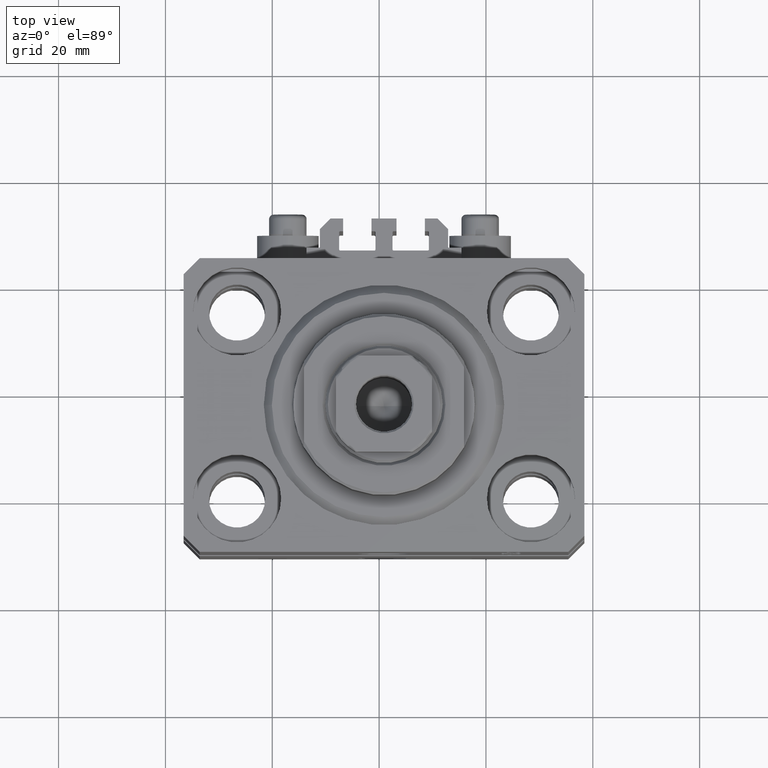
[diagram: clean part render]
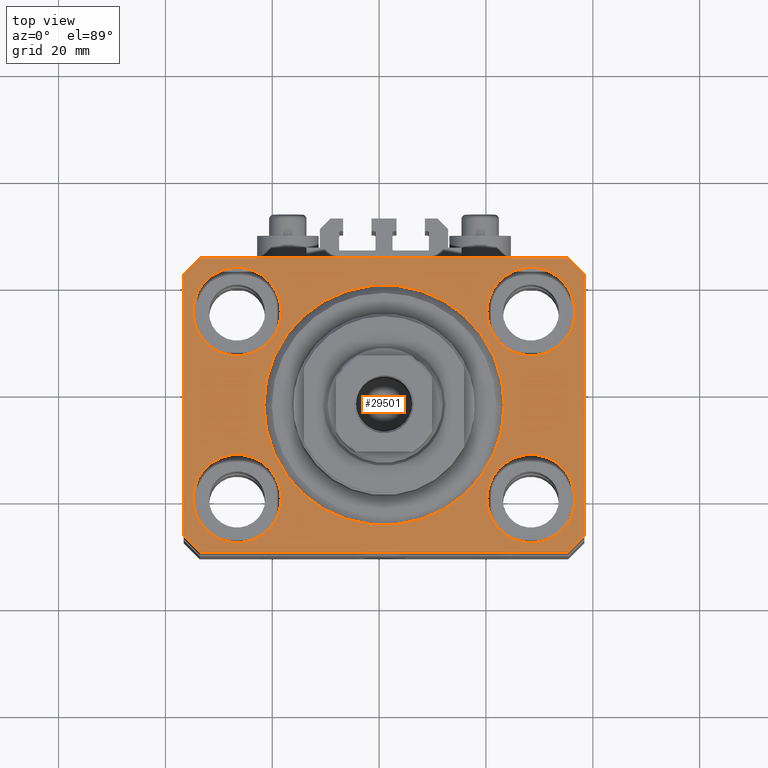
[diagram: same view with one face highlighted and labeled with its STEP entity id]
A machine part, top view. The second image highlights one B-rep face of the part: STEP entity #29501.
In plain terms, the highlighted planar face has unit normal (0, 0, 1).
Its self-contained STEP definition (entity closure, byte-faithful):
#94 = CARTESIAN_POINT ( 'NONE',  ( 27.49999999999999645, 17.50000000000001066, 0.000000000000000000 ) ) ;
#121 = FACE_BOUND ( 'NONE', #45704, .T. ) ;
#125 = ORIENTED_EDGE ( 'NONE', *, *, #127, .F. ) ;
#127 = EDGE_CURVE ( 'NONE', #40326, #5167, #16270, .T. ) ;
#133 = CARTESIAN_POINT ( 'NONE',  ( -35.75000000000000711, 17.50000000000000000, 0.000000000000000000 ) ) ;
#360 = CARTESIAN_POINT ( 'NONE',  ( 0.000000000000000000, 0.000000000000000000, 0.000000000000000000 ) ) ;
#440 = EDGE_CURVE ( 'NONE', #37434, #23564, #7946, .T. ) ;
#466 = DIRECTION ( 'NONE',  ( 0.000000000000000000, 0.000000000000000000, 1.000000000000000000 ) ) ;
#565 = DIRECTION ( 'NONE',  ( 0.000000000000000000, 0.000000000000000000, 1.000000000000000000 ) ) ;
#778 = VERTEX_POINT ( 'NONE', #29216 ) ;
#1184 = CARTESIAN_POINT ( 'NONE',  ( -27.50000000000000355, 17.50000000000000000, 0.000000000000000000 ) ) ;
#1237 = LINE ( 'NONE', #32958, #25097 ) ;
#1496 = CARTESIAN_POINT ( 'NONE',  ( 19.25000000000000000, -17.50000000000000000, 0.000000000000000000 ) ) ;
#1696 = CARTESIAN_POINT ( 'NONE',  ( -27.50000000000000355, 17.50000000000000000, 0.000000000000000000 ) ) ;
#1801 = EDGE_CURVE ( 'NONE', #15211, #6789, #10300, .T. ) ;
#2480 = EDGE_LOOP ( 'NONE', ( #2830, #18199 ) ) ;
#2748 = CARTESIAN_POINT ( 'NONE',  ( -27.50000000000000355, -17.50000000000000000, 0.000000000000000000 ) ) ;
#2830 = ORIENTED_EDGE ( 'NONE', *, *, #25384, .F. ) ;
#2879 = ORIENTED_EDGE ( 'NONE', *, *, #22504, .T. ) ;
#2886 = ORIENTED_EDGE ( 'NONE', *, *, #11404, .F. ) ;
#3507 = CARTESIAN_POINT ( 'NONE',  ( -34.49999999999999289, 27.50000000000000000, 0.000000000000000000 ) ) ;
#3649 = CARTESIAN_POINT ( 'NONE',  ( 34.50000000000056843, 27.50000000000000000, 0.000000000000000000 ) ) ;
#3671 = FACE_BOUND ( 'NONE', #37435, .T. ) ;
#3917 = VERTEX_POINT ( 'NONE', #3507 ) ;
#4053 = VECTOR ( 'NONE', #7173, 1000.000000000000114 ) ;
#4150 = AXIS2_PLACEMENT_3D ( 'NONE', #2748, #28061, #32558 ) ;
#4288 = ORIENTED_EDGE ( 'NONE', *, *, #16528, .T. ) ;
#4773 = DIRECTION ( 'NONE',  ( 0.000000000000000000, 0.000000000000000000, 1.000000000000000000 ) ) ;
#5167 = VERTEX_POINT ( 'NONE', #133 ) ;
#6752 = AXIS2_PLACEMENT_3D ( 'NONE', #40237, #41176, #7797 ) ;
#6789 = VERTEX_POINT ( 'NONE', #46784 ) ;
#7173 = DIRECTION ( 'NONE',  ( -0.7071067811865356934, 0.7071067811865594521, 0.000000000000000000 ) ) ;
#7234 = FACE_BOUND ( 'NONE', #38013, .T. ) ;
#7797 = DIRECTION ( 'NONE',  ( 1.000000000000000000, 0.000000000000000000, 0.000000000000000000 ) ) ;
#7807 = EDGE_CURVE ( 'NONE', #22517, #3917, #28973, .T. ) ;
#7935 = CARTESIAN_POINT ( 'NONE',  ( 34.49999999999999289, -27.49999999999999645, 0.000000000000000000 ) ) ;
#7946 = CIRCLE ( 'NONE', #18528, 8.249999999999992895 ) ;
#8325 = DIRECTION ( 'NONE',  ( -0.7071067811865471286, -0.7071067811865479058, 0.000000000000000000 ) ) ;
#8404 = ORIENTED_EDGE ( 'NONE', *, *, #45719, .T. ) ;
#8924 = CARTESIAN_POINT ( 'NONE',  ( -27.50000000000000355, -17.50000000000000000, 0.000000000000000000 ) ) ;
#9128 = VERTEX_POINT ( 'NONE', #46848 ) ;
#9468 = CARTESIAN_POINT ( 'NONE',  ( 34.49999999999999289, -27.49999999999999645, 0.000000000000000000 ) ) ;
#9994 = LINE ( 'NONE', #31784, #32622 ) ;
#10064 = VECTOR ( 'NONE', #43214, 1000.000000000000114 ) ;
#10077 = FACE_OUTER_BOUND ( 'NONE', #13742, .T. ) ;
#10300 = LINE ( 'NONE', #10523, #11766 ) ;
#10523 = CARTESIAN_POINT ( 'NONE',  ( -37.49999999999999289, 24.50000000000000000, 0.000000000000000000 ) ) ;
#10633 = CARTESIAN_POINT ( 'NONE',  ( 27.49999999999999645, 17.50000000000001066, 0.000000000000000000 ) ) ;
#11103 = DIRECTION ( 'NONE',  ( 1.000000000000000000, 0.000000000000000000, 0.000000000000000000 ) ) ;
#11404 = EDGE_CURVE ( 'NONE', #9128, #42166, #30921, .T. ) ;
#11581 = CIRCLE ( 'NONE', #44104, 8.249999999999992895 ) ;
#11766 = VECTOR ( 'NONE', #21883, 1000.000000000000000 ) ;
#12014 = DIRECTION ( 'NONE',  ( 1.000000000000000000, 0.000000000000000000, 0.000000000000000000 ) ) ;
#12254 = ORIENTED_EDGE ( 'NONE', *, *, #37553, .F. ) ;
#12481 = AXIS2_PLACEMENT_3D ( 'NONE', #1696, #4773, #30327 ) ;
#13606 = CARTESIAN_POINT ( 'NONE',  ( 0.000000000000000000, 0.000000000000000000, 0.000000000000000000 ) ) ;
#13742 = EDGE_LOOP ( 'NONE', ( #28909, #14115, #24607, #42288, #4288, #8404, #29243, #2879 ) ) ;
#14115 = ORIENTED_EDGE ( 'NONE', *, *, #18417, .T. ) ;
#14565 = FACE_BOUND ( 'NONE', #16848, .T. ) ;
#14801 = DIRECTION ( 'NONE',  ( 1.000000000000000000, 0.000000000000000000, -0.000000000000000000 ) ) ;
#14892 = DIRECTION ( 'NONE',  ( 0.000000000000000000, 0.000000000000000000, 1.000000000000000000 ) ) ;
#14899 = DIRECTION ( 'NONE',  ( 1.000000000000000000, 0.000000000000000000, 0.000000000000000000 ) ) ;
#15157 = CARTESIAN_POINT ( 'NONE',  ( -22.50000000000000355, 2.755455298081545172E-15, 0.000000000000000000 ) ) ;
#15211 = VERTEX_POINT ( 'NONE', #22601 ) ;
#15342 = VERTEX_POINT ( 'NONE', #39319 ) ;
#15369 = CARTESIAN_POINT ( 'NONE',  ( 37.49999999999999289, -24.50000000000000000, 0.000000000000000000 ) ) ;
#16270 = CIRCLE ( 'NONE', #12481, 8.250000000000000000 ) ;
#16311 = LINE ( 'NONE', #23646, #19998 ) ;
#16528 = EDGE_CURVE ( 'NONE', #778, #36200, #27916, .T. ) ;
#16848 = EDGE_LOOP ( 'NONE', ( #12254, #25121 ) ) ;
#17295 = VECTOR ( 'NONE', #28734, 1000.000000000000000 ) ;
#17986 = CARTESIAN_POINT ( 'NONE',  ( 0.000000000000000000, 0.000000000000000000, 0.000000000000000000 ) ) ;
#18110 = FACE_BOUND ( 'NONE', #2480, .T. ) ;
#18199 = ORIENTED_EDGE ( 'NONE', *, *, #440, .F. ) ;
#18417 = EDGE_CURVE ( 'NONE', #3917, #15211, #1237, .T. ) ;
#18528 = AXIS2_PLACEMENT_3D ( 'NONE', #10633, #14892, #11103 ) ;
#19254 = AXIS2_PLACEMENT_3D ( 'NONE', #1184, #466, #14899 ) ;
#19998 = VECTOR ( 'NONE', #42324, 1000.000000000000000 ) ;
#20577 = EDGE_CURVE ( 'NONE', #46387, #32706, #38041, .T. ) ;
#20710 = DIRECTION ( 'NONE',  ( 1.000000000000000000, 0.000000000000000000, 0.000000000000000000 ) ) ;
#21883 = DIRECTION ( 'NONE',  ( 0.000000000000000000, -1.000000000000000000, 0.000000000000000000 ) ) ;
#22504 = EDGE_CURVE ( 'NONE', #15342, #22517, #32971, .T. ) ;
#22517 = VERTEX_POINT ( 'NONE', #25613 ) ;
#22601 = CARTESIAN_POINT ( 'NONE',  ( -37.49999999999999289, 24.50000000000000000, 0.000000000000000000 ) ) ;
#23564 = VERTEX_POINT ( 'NONE', #26806 ) ;
#23646 = CARTESIAN_POINT ( 'NONE',  ( -37.49999999999999289, -24.50000000000000000, 0.000000000000000000 ) ) ;
#23744 = EDGE_CURVE ( 'NONE', #42166, #9128, #39536, .T. ) ;
#23839 = DIRECTION ( 'NONE',  ( 0.000000000000000000, 0.000000000000000000, 1.000000000000000000 ) ) ;
#24263 = DIRECTION ( 'NONE',  ( 0.000000000000000000, 0.000000000000000000, 1.000000000000000000 ) ) ;
#24394 = AXIS2_PLACEMENT_3D ( 'NONE', #17986, #29110, #25547 ) ;
#24607 = ORIENTED_EDGE ( 'NONE', *, *, #1801, .T. ) ;
#25097 = VECTOR ( 'NONE', #8325, 1000.000000000000000 ) ;
#25121 = ORIENTED_EDGE ( 'NONE', *, *, #20577, .F. ) ;
#25384 = EDGE_CURVE ( 'NONE', #23564, #37434, #11581, .T. ) ;
#25547 = DIRECTION ( 'NONE',  ( 1.000000000000000000, 0.000000000000000000, 0.000000000000000000 ) ) ;
#25613 = CARTESIAN_POINT ( 'NONE',  ( 34.50000000000056843, 27.50000000000000000, 0.000000000000000000 ) ) ;
#26806 = CARTESIAN_POINT ( 'NONE',  ( 35.74999999999999289, 17.50000000000001066, 0.000000000000000000 ) ) ;
#27264 = DIRECTION ( 'NONE',  ( 0.000000000000000000, 0.000000000000000000, 1.000000000000000000 ) ) ;
#27916 = LINE ( 'NONE', #42361, #43177 ) ;
#28061 = DIRECTION ( 'NONE',  ( 0.000000000000000000, 0.000000000000000000, 1.000000000000000000 ) ) ;
#28295 = EDGE_CURVE ( 'NONE', #5167, #40326, #35894, .T. ) ;
#28434 = EDGE_CURVE ( 'NONE', #6789, #778, #16311, .T. ) ;
#28734 = DIRECTION ( 'NONE',  ( -1.000000000000000000, 0.000000000000000000, 0.000000000000000000 ) ) ;
#28909 = ORIENTED_EDGE ( 'NONE', *, *, #7807, .T. ) ;
#28973 = LINE ( 'NONE', #3649, #17295 ) ;
#29110 = DIRECTION ( 'NONE',  ( 0.000000000000000000, 0.000000000000000000, 1.000000000000000000 ) ) ;
#29173 = CARTESIAN_POINT ( 'NONE',  ( 37.50000000000051870, 24.49999999999995381, 0.000000000000000000 ) ) ;
#29216 = CARTESIAN_POINT ( 'NONE',  ( -34.49999999999998579, -27.49999999999999645, 0.000000000000000000 ) ) ;
#29243 = ORIENTED_EDGE ( 'NONE', *, *, #41329, .T. ) ;
#29452 = EDGE_CURVE ( 'NONE', #38707, #34458, #44240, .T. ) ;
#29501 = ADVANCED_FACE ( 'NONE', ( #7234, #3671, #18110, #121, #14565, #10077 ), #39898, .T. ) ;
#29568 = AXIS2_PLACEMENT_3D ( 'NONE', #13606, #24263, #20710 ) ;
#29631 = ORIENTED_EDGE ( 'NONE', *, *, #28295, .F. ) ;
#30327 = DIRECTION ( 'NONE',  ( 1.000000000000000000, 0.000000000000000000, 0.000000000000000000 ) ) ;
#30921 = CIRCLE ( 'NONE', #6752, 8.250000000000000000 ) ;
#31784 = CARTESIAN_POINT ( 'NONE',  ( 37.49999999999999289, -24.50000000000000000, 0.000000000000000000 ) ) ;
#32269 = ORIENTED_EDGE ( 'NONE', *, *, #29452, .F. ) ;
#32558 = DIRECTION ( 'NONE',  ( 1.000000000000000000, 0.000000000000000000, 0.000000000000000000 ) ) ;
#32562 = LINE ( 'NONE', #7935, #10064 ) ;
#32622 = VECTOR ( 'NONE', #37574, 1000.000000000000000 ) ;
#32706 = VERTEX_POINT ( 'NONE', #42178 ) ;
#32958 = CARTESIAN_POINT ( 'NONE',  ( -34.49999999999999289, 27.50000000000000000, 0.000000000000000000 ) ) ;
#32971 = LINE ( 'NONE', #29173, #4053 ) ;
#33002 = DIRECTION ( 'NONE',  ( 1.000000000000000000, 0.000000000000000000, 0.000000000000000000 ) ) ;
#33333 = CIRCLE ( 'NONE', #29568, 22.50000000000000355 ) ;
#33660 = AXIS2_PLACEMENT_3D ( 'NONE', #360, #40836, #14801 ) ;
#34458 = VERTEX_POINT ( 'NONE', #45043 ) ;
#35137 = EDGE_CURVE ( 'NONE', #34458, #38707, #37068, .T. ) ;
#35894 = CIRCLE ( 'NONE', #19254, 8.250000000000000000 ) ;
#36200 = VERTEX_POINT ( 'NONE', #9468 ) ;
#37068 = CIRCLE ( 'NONE', #37848, 8.250000000000000000 ) ;
#37434 = VERTEX_POINT ( 'NONE', #43952 ) ;
#37435 = EDGE_LOOP ( 'NONE', ( #2886, #38522 ) ) ;
#37553 = EDGE_CURVE ( 'NONE', #32706, #46387, #33333, .T. ) ;
#37574 = DIRECTION ( 'NONE',  ( 1.076236605503979380E-14, 1.000000000000000000, 0.000000000000000000 ) ) ;
#37848 = AXIS2_PLACEMENT_3D ( 'NONE', #8924, #23839, #12014 ) ;
#38013 = EDGE_LOOP ( 'NONE', ( #39170, #32269 ) ) ;
#38041 = CIRCLE ( 'NONE', #24394, 22.50000000000000355 ) ;
#38143 = AXIS2_PLACEMENT_3D ( 'NONE', #46426, #27264, #41705 ) ;
#38377 = VERTEX_POINT ( 'NONE', #15369 ) ;
#38522 = ORIENTED_EDGE ( 'NONE', *, *, #23744, .F. ) ;
#38707 = VERTEX_POINT ( 'NONE', #43291 ) ;
#39170 = ORIENTED_EDGE ( 'NONE', *, *, #35137, .F. ) ;
#39319 = CARTESIAN_POINT ( 'NONE',  ( 37.50000000000051870, 24.49999999999995381, 0.000000000000000000 ) ) ;
#39536 = CIRCLE ( 'NONE', #38143, 8.250000000000000000 ) ;
#39898 = PLANE ( 'NONE',  #33660 ) ;
#40237 = CARTESIAN_POINT ( 'NONE',  ( 27.50000000000000355, -17.50000000000000000, 0.000000000000000000 ) ) ;
#40326 = VERTEX_POINT ( 'NONE', #44361 ) ;
#40836 = DIRECTION ( 'NONE',  ( 0.000000000000000000, 0.000000000000000000, 1.000000000000000000 ) ) ;
#41176 = DIRECTION ( 'NONE',  ( 0.000000000000000000, 0.000000000000000000, 1.000000000000000000 ) ) ;
#41329 = EDGE_CURVE ( 'NONE', #38377, #15342, #9994, .T. ) ;
#41667 = DIRECTION ( 'NONE',  ( 1.000000000000000000, 0.000000000000000000, 0.000000000000000000 ) ) ;
#41705 = DIRECTION ( 'NONE',  ( 1.000000000000000000, 0.000000000000000000, 0.000000000000000000 ) ) ;
#42166 = VERTEX_POINT ( 'NONE', #1496 ) ;
#42178 = CARTESIAN_POINT ( 'NONE',  ( 22.50000000000000355, 0.000000000000000000, 0.000000000000000000 ) ) ;
#42288 = ORIENTED_EDGE ( 'NONE', *, *, #28434, .T. ) ;
#42324 = DIRECTION ( 'NONE',  ( 0.7071067811865483499, -0.7071067811865466846, 0.000000000000000000 ) ) ;
#42361 = CARTESIAN_POINT ( 'NONE',  ( -34.49999999999998579, -27.49999999999999645, 0.000000000000000000 ) ) ;
#43177 = VECTOR ( 'NONE', #41667, 1000.000000000000000 ) ;
#43214 = DIRECTION ( 'NONE',  ( 0.7071067811865474617, 0.7071067811865474617, 0.000000000000000000 ) ) ;
#43291 = CARTESIAN_POINT ( 'NONE',  ( -35.75000000000000711, -17.50000000000000000, 0.000000000000000000 ) ) ;
#43952 = CARTESIAN_POINT ( 'NONE',  ( 19.25000000000000000, 17.50000000000001066, 0.000000000000000000 ) ) ;
#44104 = AXIS2_PLACEMENT_3D ( 'NONE', #94, #565, #33002 ) ;
#44240 = CIRCLE ( 'NONE', #4150, 8.250000000000000000 ) ;
#44361 = CARTESIAN_POINT ( 'NONE',  ( -19.25000000000000355, 17.50000000000000000, 0.000000000000000000 ) ) ;
#45043 = CARTESIAN_POINT ( 'NONE',  ( -19.25000000000000355, -17.50000000000000000, 0.000000000000000000 ) ) ;
#45704 = EDGE_LOOP ( 'NONE', ( #125, #29631 ) ) ;
#45719 = EDGE_CURVE ( 'NONE', #36200, #38377, #32562, .T. ) ;
#46387 = VERTEX_POINT ( 'NONE', #15157 ) ;
#46426 = CARTESIAN_POINT ( 'NONE',  ( 27.50000000000000355, -17.50000000000000000, 0.000000000000000000 ) ) ;
#46784 = CARTESIAN_POINT ( 'NONE',  ( -37.49999999999999289, -24.50000000000000000, 0.000000000000000000 ) ) ;
#46848 = CARTESIAN_POINT ( 'NONE',  ( 35.75000000000000711, -17.50000000000000000, 0.000000000000000000 ) ) ;